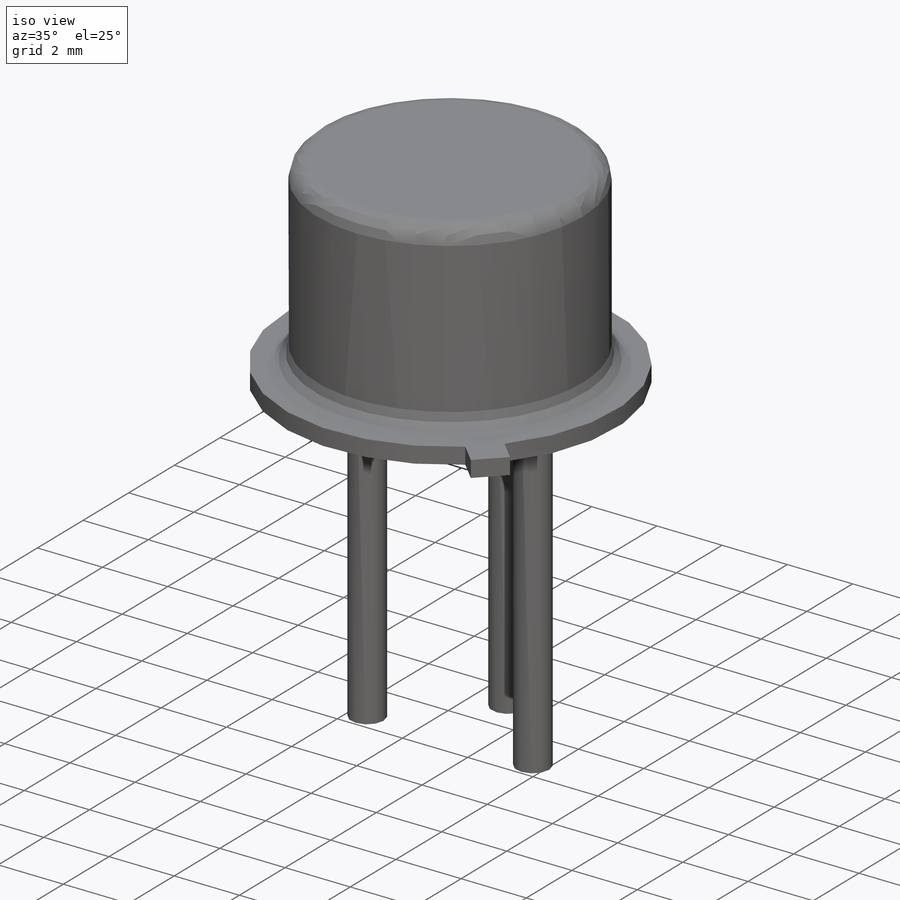
[diagram: iso view]
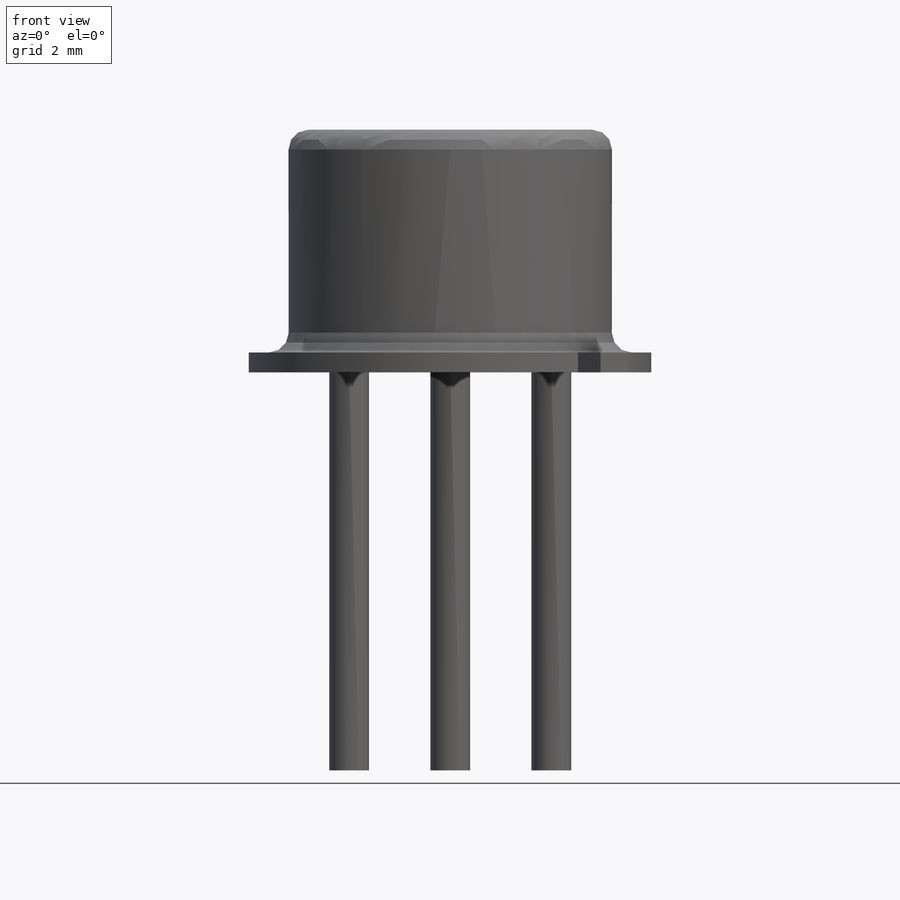
[diagram: front view]
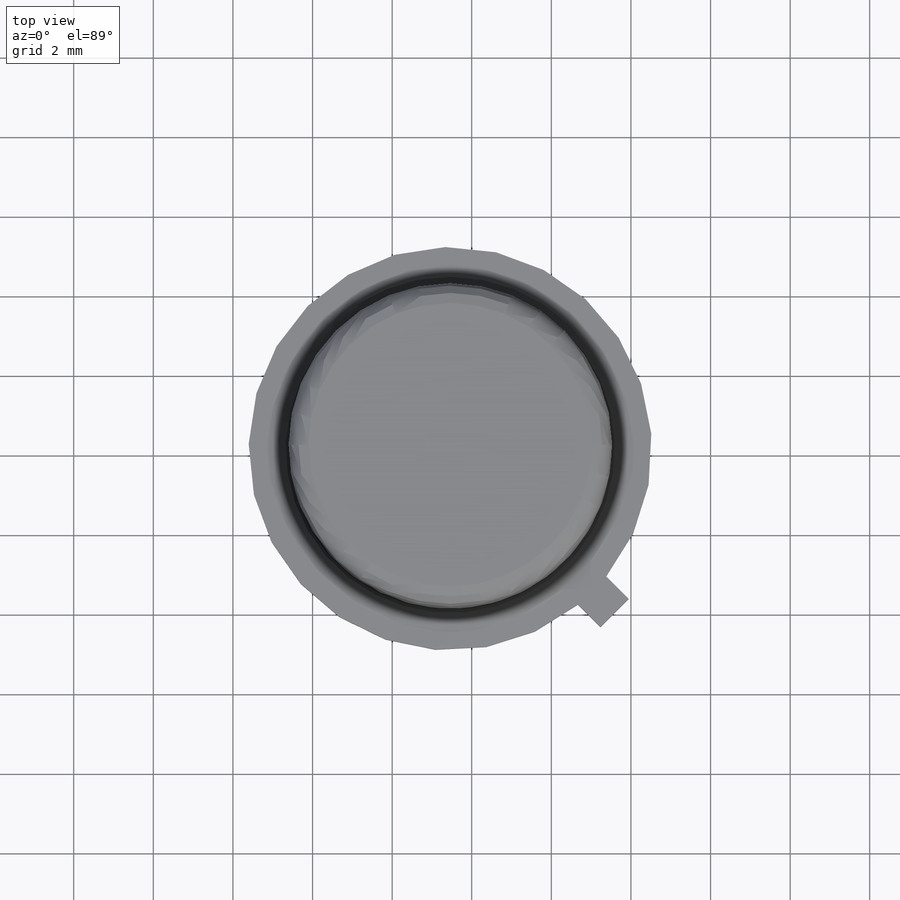
[diagram: top view]
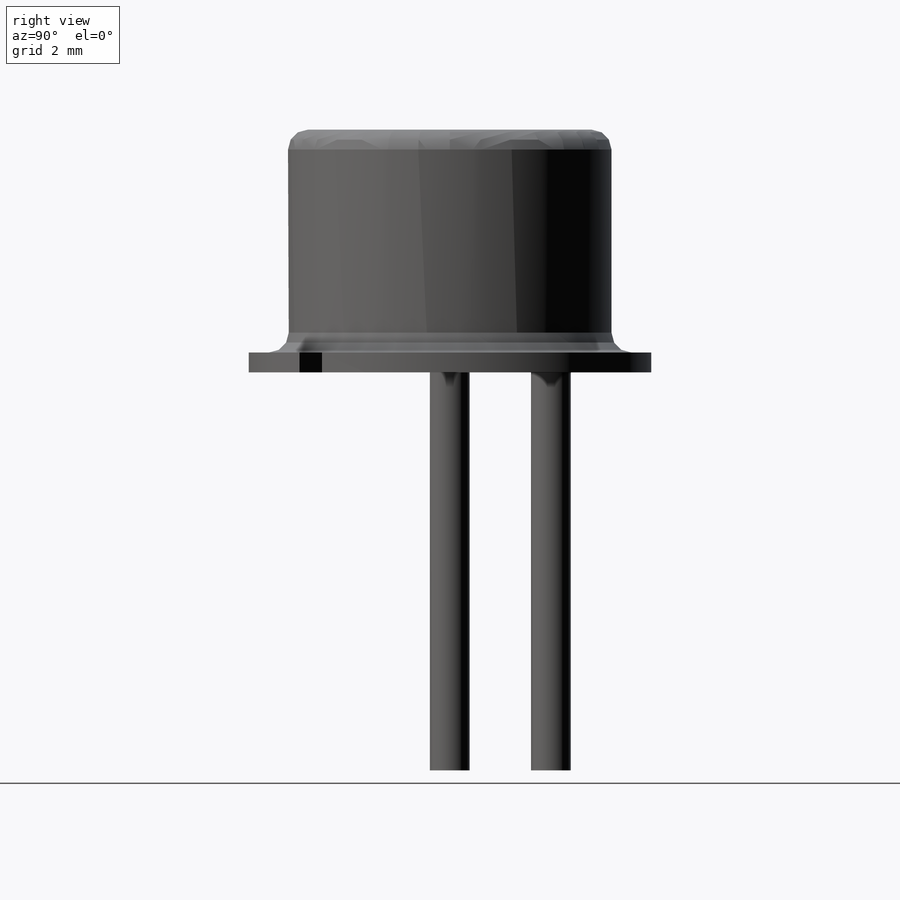
[diagram: right view]
SOLIDWORKS PART (.sldprt)
format: sldprt  version: not decoded by parser v0  size: 184,320 bytes
history: native  units: mm
features: sketch x4, extrude x3, plane x2, material x1, fillet x1 (+12 scaffold rows collapsed)
feature tree (23):
  scaffold x12  (default folders/planes/origin — collapsed)
  material  "Material <not specified>"
  plane  "Plane1"  Offset=4.06mm
  sketch  "sketch"
  extrude  "Body"  Depth=6.1mm
  sketch  "Sketch1"  dims[D2=1.0mm D1=2.54mm]
  extrude  "Legs"  Depth=10mm
  sketch  "Sketch3"  dims[c1.D1=10.13mm c1.D2=0.8mm c1.D3=1.0mm c1.D4=~5.337535mm c2.D4=45.0deg]
  extrude  "Lip"  Depth=0.5mm
  fillet  "Fillet2"  Radius=0.5mm
  plane  "Board Plane"  Offset=2mm
  sketch  "Component_Outline"
decode coverage: 6 of 8 modeling features carry decoded parameters
note: ~ marks probable driven/reference dimensions
note: suppression state not decoded; provenance and decode notes live in map.json
